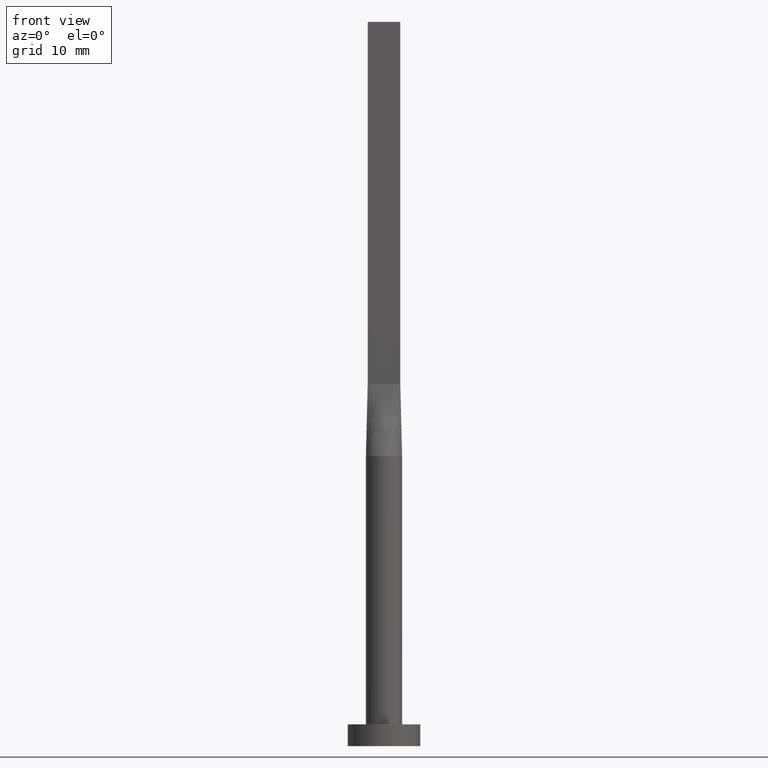
[diagram: clean part render]
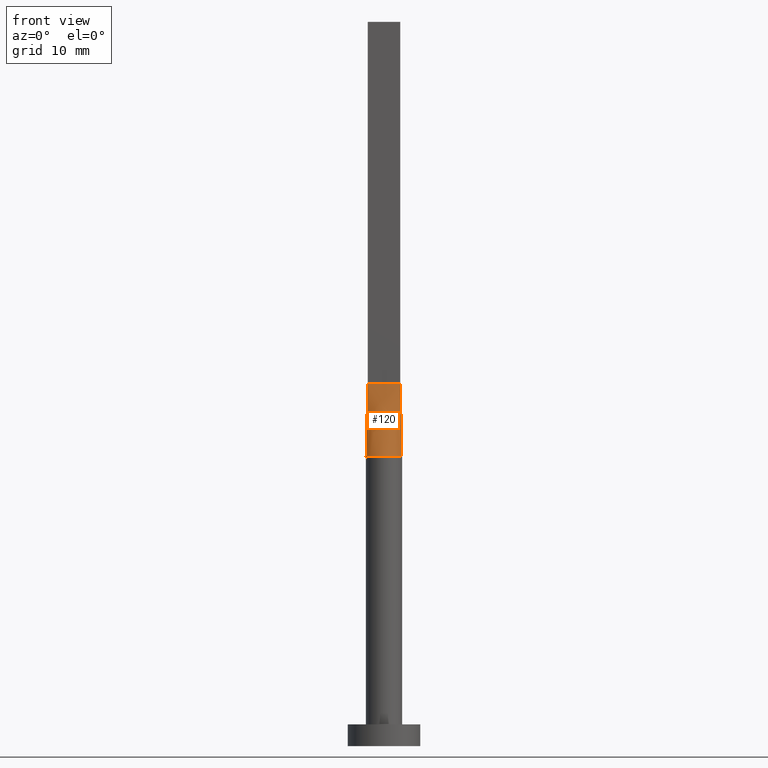
[diagram: same view with one face highlighted and labeled with its STEP entity id]
A machine part, front view. The second image highlights one B-rep face of the part: STEP entity #120.
In plain terms, the highlighted face is a freeform B-spline surface patch.
Its self-contained STEP definition (entity closure, byte-faithful):
#1 = DIRECTION ( 'NONE',  ( -0.01904314058352514841, 0.004231809018561172135, 0.9998097071888962795 ) ) ;
#8 = CARTESIAN_POINT ( 'NONE',  ( -2.323660390030918066, -0.9543733860570832173, 40.00000000000000711 ) ) ;
#16 = CARTESIAN_POINT ( 'NONE',  ( 0.7499999999999996669, -0.4999999999999995559, 50.00000000000000000 ) ) ;
#18 = VERTEX_POINT ( 'NONE', #171 ) ;
#50 = CARTESIAN_POINT ( 'NONE',  ( 0.000000000000000000, 0.000000000000000000, 40.00000000000000000 ) ) ;
#52 = CARTESIAN_POINT ( 'NONE',  ( 0.3749999999999998890, -0.4999999999999995559, 50.00000000000000711 ) ) ;
#64 = CARTESIAN_POINT ( 'NONE',  ( 2.440706242928429415, -0.5423794613208688942, 40.00000000000000000 ) ) ;
#73 = CARTESIAN_POINT ( 'NONE',  ( 2.396350003401058082, -0.7408555563113468079, 40.00000000000000000 ) ) ;
#77 = CARTESIAN_POINT ( 'NONE',  ( 1.875000000000000000, -0.4999999999999997780, 50.00000000000000000 ) ) ;
#79 = CARTESIAN_POINT ( 'NONE',  ( 2.323660390030917178, -0.9543733860570838834, 40.00000000000000000 ) ) ;
#80 = CIRCLE ( 'NONE', #258, 2.500000000000000000 ) ;
#94 = CARTESIAN_POINT ( 'NONE',  ( -0.3750000000000002220, -0.4999999999999995559, 50.00000000000000000 ) ) ;
#100 = CARTESIAN_POINT ( 'NONE',  ( -0.6674771052374477431, -2.430579781493059865, 40.00000000000001421 ) ) ;
#104 = CARTESIAN_POINT ( 'NONE',  ( 1.499999999999999778, -0.4999999999999997780, 50.00000000000000000 ) ) ;
#110 = VERTEX_POINT ( 'NONE', #64 ) ;
#120 = ADVANCED_FACE ( 'NONE', ( #500 ), #578, .T. ) ;
#139 = EDGE_CURVE ( 'NONE', #18, #527, #268, .T. ) ;
#145 = CARTESIAN_POINT ( 'NONE',  ( -2.250000000000000000, -0.4999999999999994449, 50.00000000000000000 ) ) ;
#171 = CARTESIAN_POINT ( 'NONE',  ( -2.250000000000000000, -0.4999999999999994449, 50.00000000000000000 ) ) ;
#180 = VECTOR ( 'NONE', #1, 1000.000000000000000 ) ;
#197 = CARTESIAN_POINT ( 'NONE',  ( 0.3342381693191144310, -2.500000000000000444, 39.99999999999998579 ) ) ;
#227 = EDGE_LOOP ( 'NONE', ( #372, #518, #247, #463 ) ) ;
#230 = CARTESIAN_POINT ( 'NONE',  ( 2.250000000000000000, -0.4999999999999997780, 50.00000000000000000 ) ) ;
#231 = CARTESIAN_POINT ( 'NONE',  ( -2.440467650459882343, -0.5423261445466400765, 40.00000000000000000 ) ) ;
#235 = CARTESIAN_POINT ( 'NONE',  ( -1.875000000000000444, -0.4999999999999995559, 50.00000000000000000 ) ) ;
#241 = CARTESIAN_POINT ( 'NONE',  ( -0.9375000000000006661, -0.4999999999999995559, 50.00000000000000000 ) ) ;
#244 = CARTESIAN_POINT ( 'NONE',  ( -1.935644909179609297, -1.608159499248284829, 40.00000000000000000 ) ) ;
#246 = CARTESIAN_POINT ( 'NONE',  ( -2.250000000000000000, -0.4999999999999994449, 50.00000000000000000 ) ) ;
#247 = ORIENTED_EDGE ( 'NONE', *, *, #565, .F. ) ;
#252 = CARTESIAN_POINT ( 'NONE',  ( 2.250000000000000000, -0.4999999999999997780, 50.00000000000000000 ) ) ;
#258 = AXIS2_PLACEMENT_3D ( 'NONE', #50, #579, #493 ) ;
#260 = VECTOR ( 'NONE', #451, 1000.000000000000000 ) ;
#267 = VECTOR ( 'NONE', #485, 1000.000000000000000 ) ;
#268 = LINE ( 'NONE', #313, #260 ) ;
#277 = CARTESIAN_POINT ( 'NONE',  ( -0.3342381693191159853, -2.499999999999999556, 40.00000000000000000 ) ) ;
#280 = CARTESIAN_POINT ( 'NONE',  ( 0.1875000000000000555, -0.4999999999999995559, 50.00000000000000711 ) ) ;
#313 = CARTESIAN_POINT ( 'NONE',  ( -2.345233825229941171, -0.5211630722733197052, 45.00000000000000000 ) ) ;
#327 = CARTESIAN_POINT ( 'NONE',  ( -1.500000000000000444, -0.4999999999999995559, 50.00000000000000000 ) ) ;
#332 = CARTESIAN_POINT ( 'NONE',  ( -2.396350003401058970, -0.7408555563113458087, 39.99999999999999289 ) ) ;
#366 = CARTESIAN_POINT ( 'NONE',  ( -2.062500000000000000, -0.4999999999999995559, 50.00000000000000000 ) ) ;
#370 = CARTESIAN_POINT ( 'NONE',  ( 1.260416918790968399, -2.182794756967428640, 39.99999999999999289 ) ) ;
#372 = ORIENTED_EDGE ( 'NONE', *, *, #373, .T. ) ;
#373 = EDGE_CURVE ( 'NONE', #527, #110, #80, .T. ) ;
#374 = CARTESIAN_POINT ( 'NONE',  ( -1.312500000000000444, -0.4999999999999995559, 50.00000000000000000 ) ) ;
#381 = LINE ( 'NONE', #246, #267 ) ;
#406 = CARTESIAN_POINT ( 'NONE',  ( -0.7500000000000006661, -0.4999999999999995559, 50.00000000000000000 ) ) ;
#407 = VERTEX_POINT ( 'NONE', #230 ) ;
#413 = CARTESIAN_POINT ( 'NONE',  ( 2.093723281432890548, -1.388001797188530340, 39.99999999999999289 ) ) ;
#417 = CARTESIAN_POINT ( 'NONE',  ( -1.260416918790969509, -2.182794756967427752, 40.00000000000000000 ) ) ;
#422 = CARTESIAN_POINT ( 'NONE',  ( 2.062499999999999556, -0.4999999999999997780, 50.00000000000000000 ) ) ;
#439 = LINE ( 'NONE', #563, #180 ) ;
#451 = DIRECTION ( 'NONE',  ( -0.01904314058352519351, -0.004231809018561160859, -0.9998097071888962795 ) ) ;
#458 = CARTESIAN_POINT ( 'NONE',  ( 0.6674771052374466329, -2.430579781493059865, 40.00000000000000000 ) ) ;
#460 = CARTESIAN_POINT ( 'NONE',  ( -2.440688158044365785, -0.5423755258804862089, 40.00000000000000000 ) ) ;
#463 = ORIENTED_EDGE ( 'NONE', *, *, #139, .T. ) ;
#467 = CARTESIAN_POINT ( 'NONE',  ( -2.093723281432891881, -1.388001797188529007, 40.00000000000000000 ) ) ;
#471 = CARTESIAN_POINT ( 'NONE',  ( 1.935644909179608852, -1.608159499248284829, 40.00000000000000000 ) ) ;
#485 = DIRECTION ( 'NONE',  ( 1.000000000000000000, -7.228014483236697048E-17, 0.000000000000000000 ) ) ;
#493 = DIRECTION ( 'NONE',  ( 1.000000000000000000, 0.000000000000000000, 0.000000000000000000 ) ) ;
#500 = FACE_OUTER_BOUND ( 'NONE', #227, .T. ) ;
#509 = CARTESIAN_POINT ( 'NONE',  ( 1.519400572660313031, -2.006070808634367264, 39.99999999999999289 ) ) ;
#512 = CARTESIAN_POINT ( 'NONE',  ( 0.9374999999999997780, -0.4999999999999995559, 50.00000000000000000 ) ) ;
#515 = CARTESIAN_POINT ( 'NONE',  ( 1.312499999999999778, -0.4999999999999996669, 50.00000000000000000 ) ) ;
#518 = ORIENTED_EDGE ( 'NONE', *, *, #572, .T. ) ;
#519 = CARTESIAN_POINT ( 'NONE',  ( 2.440467650459881899, -0.5423261445466405206, 40.00000000000000000 ) ) ;
#527 = VERTEX_POINT ( 'NONE', #460 ) ;
#550 = CARTESIAN_POINT ( 'NONE',  ( -1.519400572660313919, -2.006070808634366820, 39.99999999999998579 ) ) ;
#554 = CARTESIAN_POINT ( 'NONE',  ( -0.1874999999999999445, -0.4999999999999995559, 50.00000000000000711 ) ) ;
#563 = CARTESIAN_POINT ( 'NONE',  ( 2.345233825229940727, -0.5211630722733201493, 45.00000000000000000 ) ) ;
#565 = EDGE_CURVE ( 'NONE', #18, #407, #381, .T. ) ;
#572 = EDGE_CURVE ( 'NONE', #110, #407, #439, .T. ) ;
#578 = B_SPLINE_SURFACE_WITH_KNOTS ( 'NONE', 3, 1, ( 
 ( #231, #145 ),
 ( #332, #366 ),
 ( #8, #235 ),
 ( #467, #327 ),
 ( #244, #374 ),
 ( #550, #241 ),
 ( #417, #406 ),
 ( #100, #94 ),
 ( #277, #554 ),
 ( #197, #280 ),
 ( #458, #52 ),
 ( #370, #16 ),
 ( #509, #512 ),
 ( #471, #515 ),
 ( #413, #104 ),
 ( #79, #77 ),
 ( #73, #422 ),
 ( #519, #252 ) ),
 .UNSPECIFIED., .F., .F., .F.,
 ( 4, 2, 2, 2, 2, 2, 2, 2, 4 ),
 ( 2, 2 ),
 ( 0.000000000000000000, 0.1249999999999999167, 0.2499999999999998335, 0.3749999999999998335, 0.4999999999999998890, 0.6249999999999998890, 0.7499999999999998890, 0.8750000000000000000, 1.000000000000000000 ),
 ( 0.000000000000000000, 1.000000000000000000 ),
 .UNSPECIFIED. ) ;
#579 = DIRECTION ( 'NONE',  ( 0.000000000000000000, 0.000000000000000000, 1.000000000000000000 ) ) ;